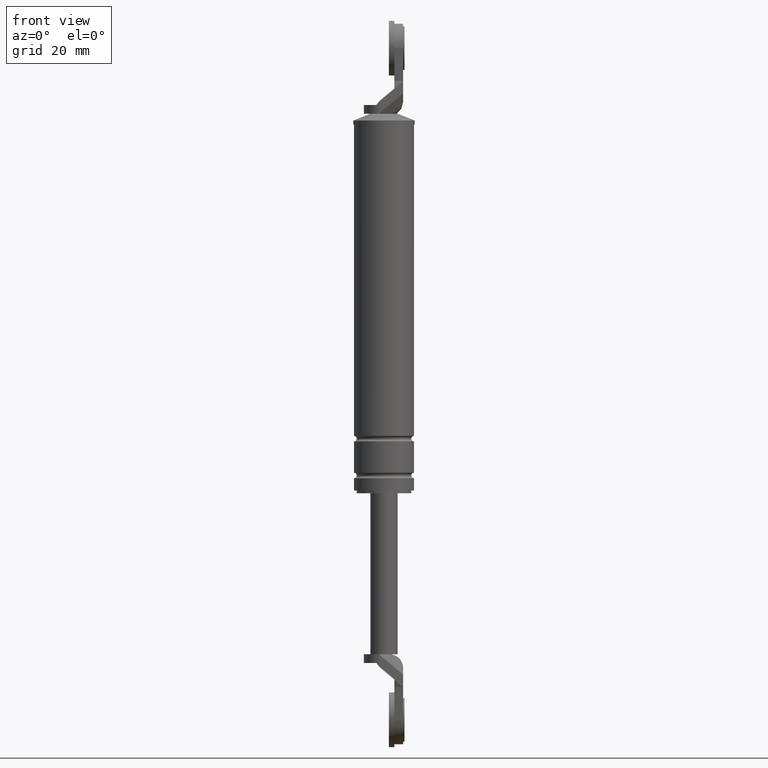
[diagram: clean part render]
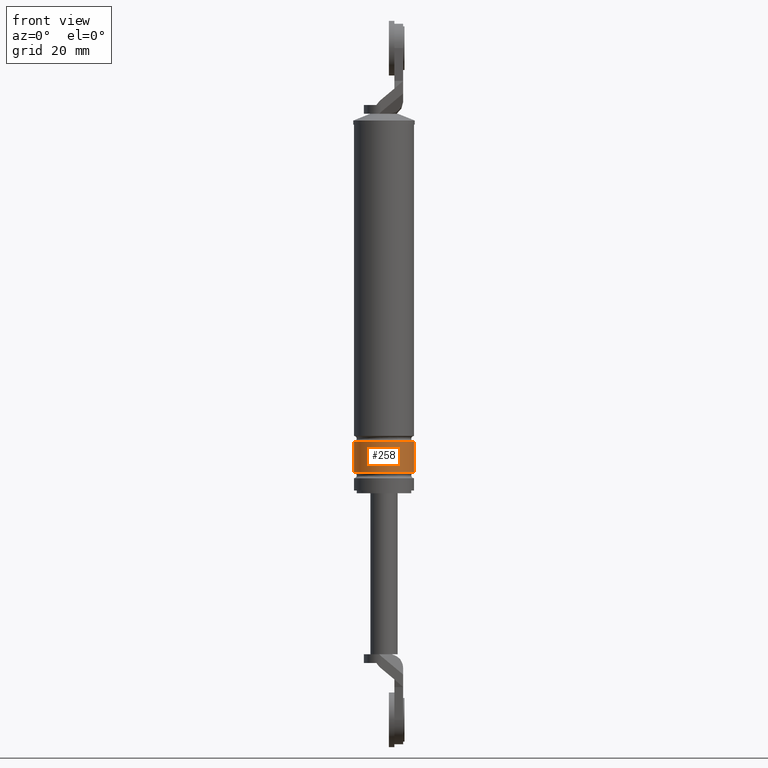
[diagram: same view with one face highlighted and labeled with its STEP entity id]
A machine part, front view. The second image highlights one B-rep face of the part: STEP entity #258.
In plain terms, the highlighted cylindrical surface (edge-blend (fillet) strip) has radius 11 mm, axis along (0, 0, 1).
Its self-contained STEP definition (entity closure, byte-faithful):
#258=ADVANCED_FACE('',(#835),#834,.T.);
#834=CYLINDRICAL_SURFACE('',#1573,1.10000000000E+001);
#835=FACE_OUTER_BOUND('',#1574,.T.);
#1570=CARTESIAN_POINT('',(0.00000000000E+000,3.58204186421E-014,0.00000000000E+000));
#1571=DIRECTION('',(-0.00000000000E+000,-0.00000000000E+000,1.00000000000E+000));
#1572=DIRECTION('',(1.00000000000E+000,0.00000000000E+000,0.00000000000E+000));
#1573=AXIS2_PLACEMENT_3D('',#1570,#1571,#1572);
#1574=EDGE_LOOP('',(#2012,#2013,#2014,#2015));
#2012=ORIENTED_EDGE('',*,*,#2276,.F.);
#2013=ORIENTED_EDGE('',*,*,#2283,.T.);
#2014=ORIENTED_EDGE('',*,*,#2280,.T.);
#2015=ORIENTED_EDGE('',*,*,#2284,.F.);
#2276=EDGE_CURVE('',#3123,#3122,#3142,.T.);
#2280=EDGE_CURVE('',#3148,#3155,#3168,.T.);
#2283=EDGE_CURVE('',#3123,#3148,#3186,.T.);
#2284=EDGE_CURVE('',#3122,#3155,#3192,.T.);
#3122=VERTEX_POINT('',#4139);
#3123=VERTEX_POINT('',#4140);
#3142=CIRCLE('',#4158,1.10000000000E+001);
#3148=VERTEX_POINT('',#4159);
#3155=VERTEX_POINT('',#4165);
#3168=CIRCLE('',#4178,1.10000000000E+001);
#3186=(BOUNDED_CURVE() B_SPLINE_CURVE(1,(#4183,#4184),.UNSPECIFIED.,.F.,.F.) B_SPLINE_CURVE_WITH_KNOTS((2,2),(8.33333343261E-002,9.16666667006E-001),.UNSPECIFIED.) CURVE() GEOMETRIC_REPRESENTATION_ITEM() RATIONAL_B_SPLINE_CURVE((1.00000000000E+000,1.00000000000E+000)) REPRESENTATION_ITEM('') );
#3192=(BOUNDED_CURVE() B_SPLINE_CURVE(1,(#4185,#4186),.UNSPECIFIED.,.F.,.F.) B_SPLINE_CURVE_WITH_KNOTS((2,2),(8.33333333333E-002,9.16666666667E-001),.UNSPECIFIED.) CURVE() GEOMETRIC_REPRESENTATION_ITEM() RATIONAL_B_SPLINE_CURVE((7.50000000000E-001,7.50000000000E-001)) REPRESENTATION_ITEM('') );
#4139=CARTESIAN_POINT('',(-1.10000000000E+001,3.58204186421E-014,-4.25000150000E+001));
#4140=CARTESIAN_POINT('',(1.10000000000E+001,3.61192557345E-014,-4.25000150000E+001));
#4155=CARTESIAN_POINT('',(0.00000000000E+000,3.58204186421E-014,-4.25000150000E+001));
#4156=DIRECTION('',(-0.00000000000E+000,0.00000000000E+000,-1.00000000000E+000));
#4157=DIRECTION('',(-1.00000000000E+000,-1.22460635382E-016,0.00000000000E+000));
#4158=AXIS2_PLACEMENT_3D('',#4155,#4156,#4157);
#4159=CARTESIAN_POINT('',(1.10000000000E+001,3.61192557345E-014,-3.10000150000E+001));
#4165=CARTESIAN_POINT('',(-1.10000000000E+001,3.58204186421E-014,-3.10000150000E+001));
#4175=CARTESIAN_POINT('',(0.00000000000E+000,3.58204186421E-014,-3.10000150000E+001));
#4176=DIRECTION('',(-0.00000000000E+000,0.00000000000E+000,-1.00000000000E+000));
#4177=DIRECTION('',(-1.00000000000E+000,-1.22460635382E-016,0.00000000000E+000));
#4178=AXIS2_PLACEMENT_3D('',#4175,#4176,#4177);
#4183=CARTESIAN_POINT('',(1.10000000000E+001,3.58204186421E-014,-4.25000149863E+001));
#4184=CARTESIAN_POINT('',(1.10000000000E+001,3.58204186421E-014,-3.10000149953E+001));
#4185=CARTESIAN_POINT('',(-1.10000000000E+001,3.55271367880E-014,-4.25000150000E+001));
#4186=CARTESIAN_POINT('',(-1.10000000000E+001,3.55271367880E-014,-3.10000150000E+001));